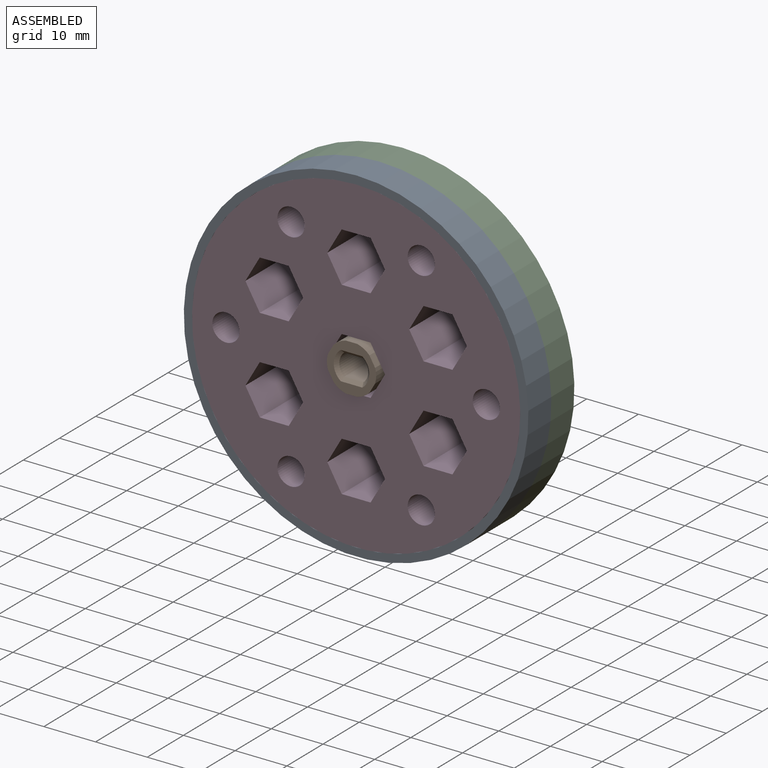
[diagram: assembled view]
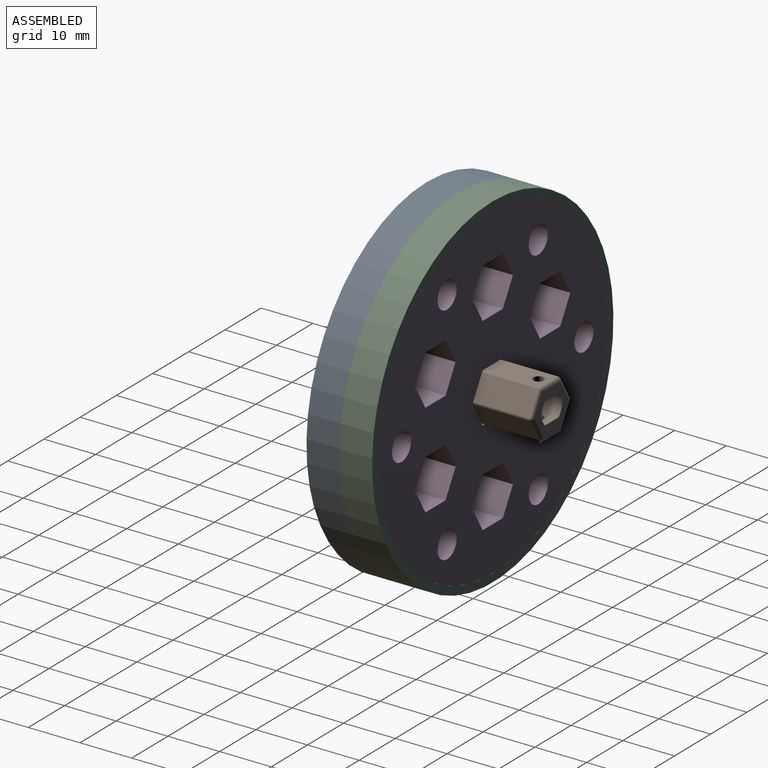
[diagram: assembled view, second angle]
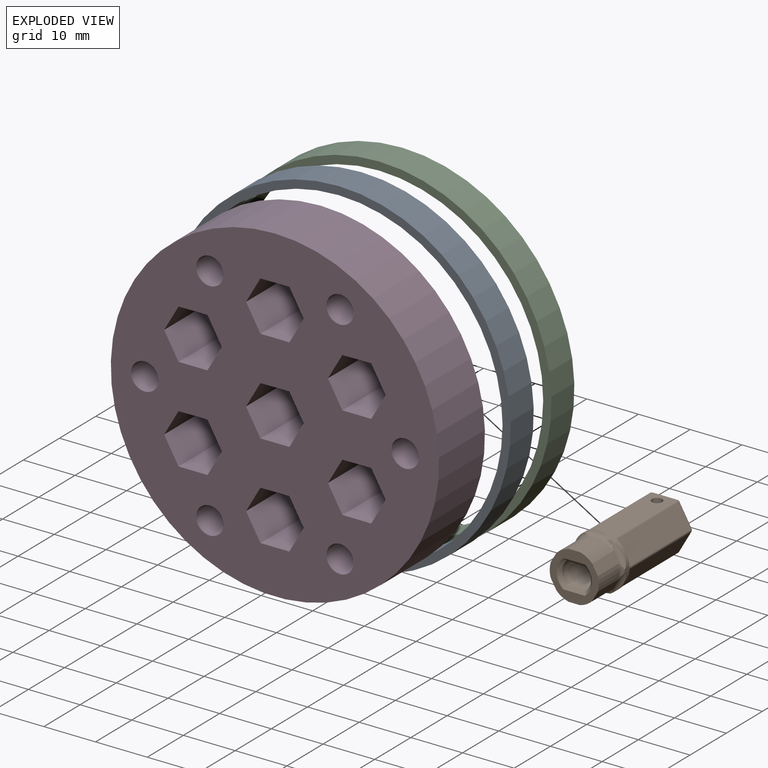
[diagram: exploded view]
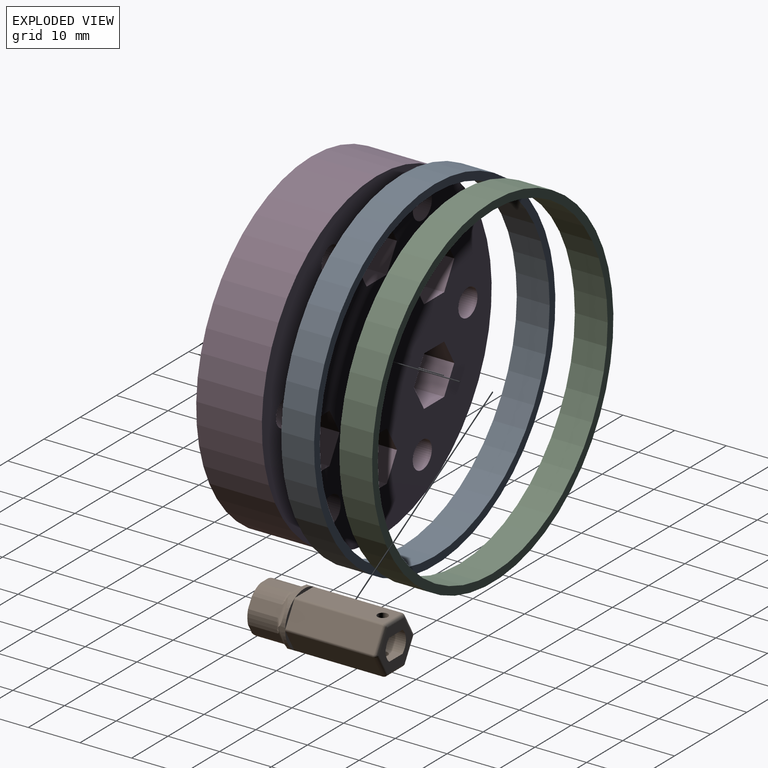
[diagram: exploded view, second angle]
ASSEMBLY  parts=4 mates=3
PART A: 4 faces, bbox 66.7x6.4x66.7 mm
  f0: cylinder r=31.75mm len=63.5mm, axis (0,1,0), area 1266.8mm2, adj f2,f3
  f1: cylinder r=33.34mm len=66.68mm, axis (0,1,0), area 1330.1mm2, adj f2,f3
  f2: plane 66.68x66.68mm, normal (0,-1,0), area 324.6mm2, adj f0,f1
  f3: plane 66.68x66.68mm, normal (0,1,0), area 324.6mm2, adj f0,f1
PART B: 73 faces, bbox 11.8x25.5x11.4 mm
  f0: plane 17.07x4.14mm, normal (-0.87,0,0.5), area 81.5mm2, adj f6,f11,f38,f57
  f1: plane 17.07x4.78mm, normal (0,0,1), area 78.4mm2, adj f6,f7,f30,f38,f60
  f2: plane 17.07x4.14mm, normal (0.87,0,0.5), area 81.5mm2, adj f7,f8,f38,f64
  f3: plane 17.07x4.14mm, normal (0.87,0,-0.5), area 81.5mm2, adj f8,f9,f38,f68
  f4: plane 17.07x4.78mm, normal (0,0,-1), area 78.4mm2, adj f9,f10,f31,f38,f65
  f5: plane 17.07x4.14mm, normal (-0.87,0,-0.5), area 81.5mm2, adj f10,f11,f38,f61
  f6: cylinder r=0.5mm len=17.07mm, axis (0,1,0), area 8.9mm2, adj f0,f1,f38,f58
  f7: cylinder r=0.5mm len=17.07mm, axis (0,1,0), area 8.9mm2, adj f1,f2,f38,f62
  f8: cylinder r=0.5mm len=17.07mm, axis (0,1,0), area 8.9mm2, adj f2,f3,f38,f66
  f9: cylinder r=0.5mm len=17.07mm, axis (0,1,0), area 8.9mm2, adj f3,f4,f38,f67
  f10: cylinder r=0.5mm len=17.07mm, axis (0,1,0), area 8.9mm2, adj f4,f5,f38,f63
  f11: cylinder r=0.5mm len=17.07mm, axis (0,1,0), area 8.9mm2, adj f0,f5,f38,f59
  f12: plane 6.03x2.31mm, normal (-0.87,0,0.5), area 13.1mm2, adj f22,f24,f29,f44,f46,f47
  f13: plane 6.03x2.66mm, normal (0,0,1), area 13.1mm2, adj f22,f28,f29,f43,f47,f48
  f14: plane 6.03x2.31mm, normal (0.87,0,0.5), area 13.1mm2, adj f22,f27,f28,f41,f48,f49
  f15: plane 6.03x2.31mm, normal (0.87,0,-0.5), area 13.1mm2, adj f22,f26,f27,f39,f49,f50
  f16: plane 6.03x2.66mm, normal (0,0,-1), area 13.1mm2, adj f22,f25,f26,f40,f45,f50
  f17: plane 6.03x2.31mm, normal (-0.87,0,-0.5), area 13.1mm2, adj f22,f24,f25,f42,f45,f46
  f18: cylinder r=2.8mm len=24.77mm, axis (0,1,0), area 117.9mm2, adj f19,f21,f23,f72
  f19: plane 24.77x3.71mm, normal (0,0,1), area 88.7mm2, adj f18,f20,f23,f31,f70
  f20: cylinder r=2.8mm len=24.77mm, axis (0,1,0), area 117.9mm2, adj f19,f21,f23,f69
  f21: plane 24.77x3.71mm, normal (0,0,-1), area 88.7mm2, adj f18,f20,f23,f30,f71
  f22: plane 9.53x9.27mm, normal (0,-1,0), area 37mm2, adj f12,f13,f14,f15,f16,f17,f24,f25
  f23: plane 9.24x8mm, normal (0,1,0), area 34.3mm2, adj f18,f19,f20,f21,f57,f60,f61,f64
  f24: cylinder r=4.76mm len=5.72mm, axis (0,-1,0), area 15.9mm2, adj f12,f17,f22,f46
  f25: cylinder r=4.76mm len=5.72mm, axis (0,-1,0), area 15.9mm2, adj f16,f17,f22,f45
  f26: cylinder r=4.76mm len=5.72mm, axis (0,-1,0), area 15.9mm2, adj f15,f16,f22,f50
  f27: cylinder r=4.76mm len=5.72mm, axis (0,-1,0), area 15.9mm2, adj f14,f15,f22,f49
  f28: cylinder r=4.76mm len=5.72mm, axis (0,-1,0), area 15.9mm2, adj f13,f14,f22,f48
  f29: cylinder r=4.76mm len=5.72mm, axis (0,-1,0), area 15.9mm2, adj f12,f13,f22,f47
  f30: cylinder r=1mm len=2.53mm, axis (0,0,1), area 15.9mm2, adj f1,f21
  f31: cylinder r=1mm len=2.53mm, axis (0,0,1), area 15.9mm2, adj f4,f19
  f32: plane 0.64x0.19mm, normal (-0.87,0,0.5), area 0.1mm2, adj f38,f44,f51,f56
  f33: plane 0.64x0.19mm, normal (-0.87,0,-0.5), area 0.1mm2, adj f38,f42,f51,f52
  f34: plane 0.64x0.22mm, normal (0,0,-1), area 0.1mm2, adj f38,f40,f52,f53
  f35: plane 0.64x0.19mm, normal (0.87,0,-0.5), area 0.1mm2, adj f38,f39,f53,f54
  f36: plane 0.64x0.19mm, normal (0.87,0,0.5), area 0.1mm2, adj f38,f41,f54,f55
  f37: plane 0.64x0.22mm, normal (0,0,1), area 0.1mm2, adj f38,f43,f55,f56
  f38: plane 10.6x10.54mm, normal (0,1,0), area 13.5mm2, adj f0,f1,f2,f3,f4,f5,f6,f7
  f39: cylinder r=1.27mm len=4.58mm, axis (-0.5,0,-0.87), area 4.9mm2, adj f15,f35,f49,f50,f53,f54
  f40: cylinder r=1.27mm len=4.92mm, axis (-1,0,0), area 4.9mm2, adj f16,f34,f45,f50,f52,f53
  f41: cylinder r=1.27mm len=4.58mm, axis (0.5,0,-0.87), area 4.9mm2, adj f14,f36,f48,f49,f54,f55
  f42: cylinder r=1.27mm len=4.58mm, axis (-0.5,0,0.87), area 4.9mm2, adj f17,f33,f45,f46,f51,f52
  f43: cylinder r=1.27mm len=4.92mm, axis (1,0,0), area 4.9mm2, adj f13,f37,f47,f48,f55,f56
  f44: cylinder r=1.27mm len=4.58mm, axis (0.5,0,0.87), area 4.9mm2, adj f12,f32,f46,f47,f51,f56
  f45: torus R=5.4mm, axis (0,-1,0), area 1.6mm2, adj f16,f17,f25,f40,f42,f52
  f46: torus R=5.4mm, axis (0,-1,0), area 1.6mm2, adj f12,f17,f24,f42,f44,f51
  f47: torus R=5.4mm, axis (0,-1,0), area 1.6mm2, adj f12,f13,f29,f43,f44,f56
  f48: torus R=5.4mm, axis (0,-1,0), area 1.6mm2, adj f13,f14,f28,f41,f43,f55
  f49: torus R=5.4mm, axis (0,-1,0), area 1.6mm2, adj f14,f15,f27,f39,f41,f54
  f50: torus R=5.4mm, axis (0,-1,0), area 1.6mm2, adj f15,f16,f26,f39,f40,f53
  f51: cylinder r=5.08mm len=5.08mm, axis (0,1,0), area 4.5mm2, adj f32,f33,f38,f42,f44,f46
  f52: cylinder r=5.08mm len=4.4mm, axis (0,1,0), area 4.5mm2, adj f33,f34,f38,f40,f42,f45
  f53: cylinder r=5.08mm len=4.4mm, axis (0,1,0), area 4.5mm2, adj f34,f35,f38,f39,f40,f50
  f54: cylinder r=5.08mm len=5.08mm, axis (0,1,0), area 4.5mm2, adj f35,f36,f38,f39,f41,f49
  f55: cylinder r=5.08mm len=4.4mm, axis (0,1,0), area 4.5mm2, adj f36,f37,f38,f41,f43,f48
  f56: cylinder r=5.08mm len=4.4mm, axis (0,1,0), area 4.5mm2, adj f32,f37,f38,f43,f44,f47
  f57: cylinder r=0.64mm len=4.45mm, axis (0.5,0,0.87), area 4.7mm2, adj f0,f23,f58,f59
  f58: bspline ~0.66x0.64mm, area 0.3mm2, adj f6,f57,f60
  f59: bspline ~0.73x0.66mm, area 0.3mm2, adj f11,f57,f61
  f60: cylinder r=0.64mm len=4.78mm, axis (1,0,0), area 4.7mm2, adj f1,f23,f58,f62
  f61: cylinder r=0.64mm len=4.45mm, axis (-0.5,0,0.87), area 4.7mm2, adj f5,f23,f59,f63
  f62: bspline ~0.66x0.64mm, area 0.3mm2, adj f7,f60,f64
  f63: bspline ~0.66x0.64mm, area 0.3mm2, adj f10,f61,f65
  f64: cylinder r=0.64mm len=4.45mm, axis (0.5,0,-0.87), area 4.7mm2, adj f2,f23,f62,f66
  f65: cylinder r=0.64mm len=4.78mm, axis (-1,0,0), area 4.7mm2, adj f4,f23,f63,f67
  f66: bspline ~0.73x0.66mm, area 0.3mm2, adj f8,f64,f68
  f67: bspline ~0.66x0.64mm, area 0.3mm2, adj f9,f65,f68
  f68: cylinder r=0.64mm len=4.45mm, axis (-0.5,0,-0.87), area 4.7mm2, adj f3,f23,f66,f67
  f69: cone r=2.8mm half-angle=45deg, axis (0,-1,0), area 5mm2, adj f20,f22,f70,f71
  f70: plane 4.18x0.65mm, normal (0,-0.71,0.71), area 3.5mm2, adj f19,f22,f69,f72
  f71: plane 4.18x0.65mm, normal (0,-0.71,-0.71), area 3.5mm2, adj f21,f22,f69,f72
  f72: cone r=3.44mm half-angle=45deg, axis (0,-1,0), area 5mm2, adj f18,f22,f70,f71
PART C: same geometry as A
PART D: 51 faces, bbox 63.5x12.7x63.5 mm
  f0: plane 12.7x5.59mm, normal (0,0,1), area 71mm2, adj f1,f41,f49,f50
  f1: plane 12.7x4.84mm, normal (-0.87,0,0.5), area 71mm2, adj f0,f2,f49,f50
  f2: plane 12.7x4.84mm, normal (-0.87,0,-0.5), area 71mm2, adj f1,f3,f49,f50
  f3: plane 12.7x5.59mm, normal (0,0,-1), area 71mm2, adj f2,f4,f49,f50
  f4: plane 12.7x4.84mm, normal (0.87,0,-0.5), area 71mm2, adj f3,f41,f49,f50
  f5: plane 12.7x4.84mm, normal (-0.87,0,0.5), area 71mm2, adj f6,f42,f49,f50
  f6: plane 12.7x4.84mm, normal (-0.87,0,-0.5), area 71mm2, adj f5,f7,f49,f50
  f7: plane 12.7x5.59mm, normal (0,0,-1), area 71mm2, adj f6,f8,f49,f50
  f8: plane 12.7x4.84mm, normal (0.87,0,-0.5), area 71mm2, adj f7,f9,f49,f50
  f9: plane 12.7x4.84mm, normal (0.87,0,0.5), area 71mm2, adj f8,f42,f49,f50
  f10: plane 12.7x4.84mm, normal (-0.87,0,-0.5), area 71mm2, adj f11,f43,f49,f50
  f11: plane 12.7x5.59mm, normal (0,0,-1), area 71mm2, adj f10,f12,f49,f50
  f12: plane 12.7x4.84mm, normal (0.87,0,-0.5), area 71mm2, adj f11,f13,f49,f50
  f13: plane 12.7x4.84mm, normal (0.87,0,0.5), area 71mm2, adj f12,f14,f49,f50
  f14: plane 12.7x5.59mm, normal (0,0,1), area 71mm2, adj f13,f43,f49,f50
  f15: plane 12.7x5.59mm, normal (0,0,-1), area 71mm2, adj f16,f44,f49,f50
  f16: plane 12.7x4.84mm, normal (0.87,0,-0.5), area 71mm2, adj f15,f17,f49,f50
  f17: plane 12.7x4.84mm, normal (0.87,0,0.5), area 71mm2, adj f16,f18,f49,f50
  f18: plane 12.7x5.59mm, normal (0,0,1), area 71mm2, adj f17,f19,f49,f50
  f19: plane 12.7x4.84mm, normal (-0.87,0,0.5), area 71mm2, adj f18,f44,f49,f50
  f20: plane 12.7x4.84mm, normal (0.87,0,-0.5), area 71mm2, adj f21,f45,f49,f50
  f21: plane 12.7x4.84mm, normal (0.87,0,0.5), area 71mm2, adj f20,f22,f49,f50
  f22: plane 12.7x5.59mm, normal (0,0,1), area 71mm2, adj f21,f23,f49,f50
  f23: plane 12.7x4.84mm, normal (-0.87,0,0.5), area 71mm2, adj f22,f24,f49,f50
  f24: plane 12.7x4.84mm, normal (-0.87,0,-0.5), area 71mm2, adj f23,f45,f49,f50
  f25: plane 12.7x5.59mm, normal (0,0,1), area 71mm2, adj f26,f46,f49,f50
  f26: plane 12.7x4.84mm, normal (-0.87,0,0.5), area 71mm2, adj f25,f27,f49,f50
  f27: plane 12.7x4.84mm, normal (-0.87,0,-0.5), area 71mm2, adj f26,f28,f49,f50
  f28: plane 12.7x5.59mm, normal (0,0,-1), area 71mm2, adj f27,f29,f49,f50
  f29: plane 12.7x4.84mm, normal (0.87,0,-0.5), area 71mm2, adj f28,f46,f49,f50
  f30: plane 12.7x5.59mm, normal (0,0,-1), area 71mm2, adj f31,f47,f49,f50
  f31: plane 12.7x4.84mm, normal (0.87,0,-0.5), area 71mm2, adj f30,f32,f49,f50
  f32: plane 12.7x4.84mm, normal (0.87,0,0.5), area 71mm2, adj f31,f33,f49,f50
  f33: plane 12.7x5.59mm, normal (0,0,1), area 71mm2, adj f32,f34,f49,f50
  f34: plane 12.7x4.84mm, normal (-0.87,0,0.5), area 71mm2, adj f33,f47,f49,f50
  f35: cylinder r=2.64mm len=12.7mm, axis (0,-1,0), area 210.3mm2, adj f49,f50
  f36: cylinder r=2.64mm len=12.7mm, axis (0,-1,0), area 210.3mm2, adj f49,f50
  f37: cylinder r=2.64mm len=12.7mm, axis (0,-1,0), area 210.3mm2, adj f49,f50
  f38: cylinder r=2.64mm len=12.7mm, axis (0,-1,0), area 210.3mm2, adj f49,f50
  f39: cylinder r=2.64mm len=12.7mm, axis (0,-1,0), area 210.3mm2, adj f49,f50
  f40: cylinder r=2.64mm len=12.7mm, axis (0,-1,0), area 210.3mm2, adj f49,f50
  f41: plane 12.7x4.84mm, normal (0.87,0,0.5), area 71mm2, adj f0,f4,f49,f50
  f42: plane 12.7x5.59mm, normal (0,0,1), area 71mm2, adj f5,f9,f49,f50
  f43: plane 12.7x4.84mm, normal (-0.87,0,0.5), area 71mm2, adj f10,f14,f49,f50
  f44: plane 12.7x4.84mm, normal (-0.87,0,-0.5), area 71mm2, adj f15,f19,f49,f50
  f45: plane 12.7x5.59mm, normal (0,0,-1), area 71mm2, adj f20,f24,f49,f50
  f46: plane 12.7x4.84mm, normal (0.87,0,0.5), area 71mm2, adj f25,f29,f49,f50
  f47: plane 12.7x4.84mm, normal (-0.87,0,-0.5), area 71mm2, adj f30,f34,f49,f50
  f48: cylinder r=31.75mm len=63.5mm, axis (0,-1,0), area 2533.5mm2, adj f49,f50
  f49: plane 63.5x63.5mm, normal (0,1,0), area 2468.3mm2, adj f0,f1,f2,f3,f4,f5,f6,f7
  f50: plane 63.5x63.5mm, normal (0,-1,0), area 2468.3mm2, adj f0,f1,f2,f3,f4,f5,f6,f7
PLACE A t=(-8.44,-47.92,-11.02)mm
PLACE B t=(-8.44,-17.44,-11.02)mm fixed
PLACE C t=(-8.44,-41.57,-11.02)mm
PLACE D t=(-8.44,-41.57,-11.02)mm
MATE revolute C.f0 <-> A.f0  axis (0,-1,0) through (-34.29,-25.52,0.13)mm
MATE revolute C.f0 <-> D.f48  axis (0,1,0) through (-34.29,-19.17,0.13)mm
MATE parallel B.f12 <-> D.f31  axis (-0.87,0,0.5) through (-38.31,-30.15,2.45)mm
